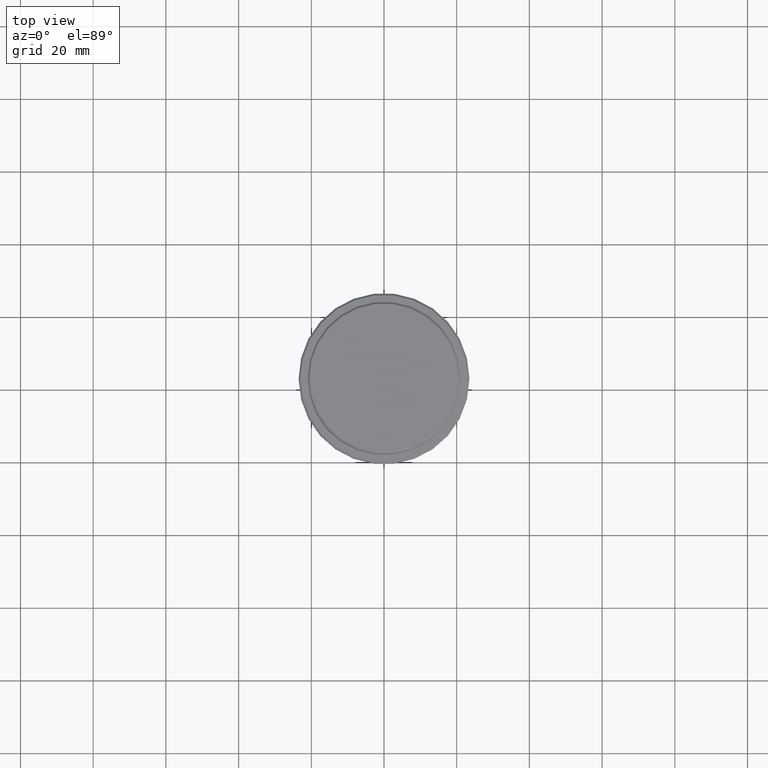
[diagram: clean part render]
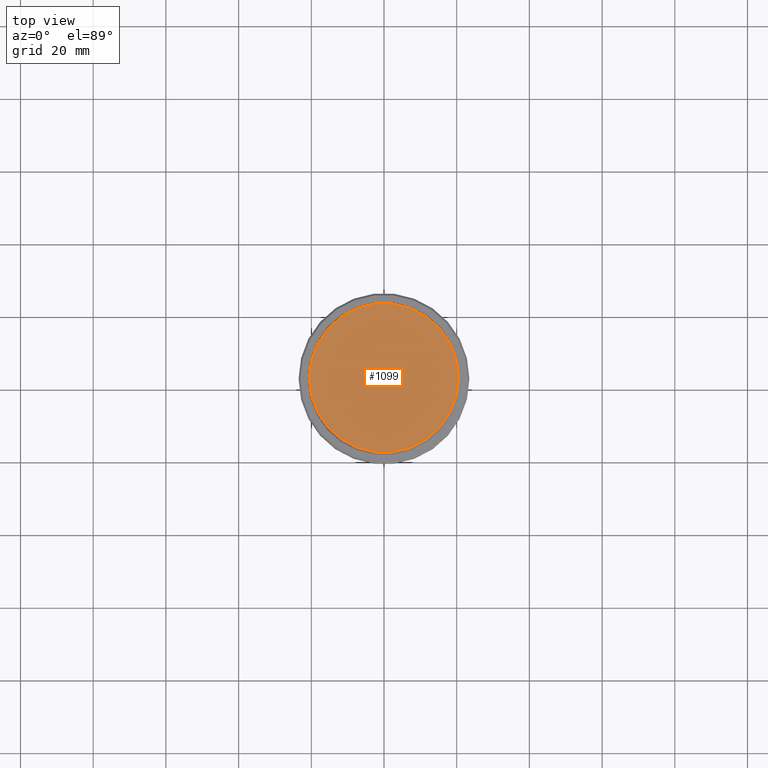
[diagram: same view with one face highlighted and labeled with its STEP entity id]
A machine part, top view. The second image highlights one B-rep face of the part: STEP entity #1099.
In plain terms, the highlighted planar face has unit normal (0, -0, 1).
Its self-contained STEP definition (entity closure, byte-faithful):
#92 = CIRCLE ( 'NONE', #1195, 20.49999999999998934 ) ;
#106 = DIRECTION ( 'NONE',  ( 1.000000000000000000, 0.000000000000000000, 0.000000000000000000 ) ) ;
#221 = EDGE_CURVE ( 'NONE', #497, #1151, #1123, .T. ) ;
#299 = DIRECTION ( 'NONE',  ( 1.000000000000000000, 0.000000000000000000, 0.000000000000000000 ) ) ;
#324 = PLANE ( 'NONE',  #490 ) ;
#374 = AXIS2_PLACEMENT_3D ( 'NONE', #854, #877, #106 ) ;
#384 = EDGE_CURVE ( 'NONE', #1151, #497, #92, .T. ) ;
#490 = AXIS2_PLACEMENT_3D ( 'NONE', #948, #846, #299 ) ;
#497 = VERTEX_POINT ( 'NONE', #925 ) ;
#645 = FACE_OUTER_BOUND ( 'NONE', #726, .T. ) ;
#726 = EDGE_LOOP ( 'NONE', ( #1027, #1322 ) ) ;
#774 = DIRECTION ( 'NONE',  ( 1.000000000000000000, 0.000000000000000000, 0.000000000000000000 ) ) ;
#846 = DIRECTION ( 'NONE',  ( 0.000000000000000000, -0.000000000000000000, 1.000000000000000000 ) ) ;
#854 = CARTESIAN_POINT ( 'NONE',  ( 0.000000000000000000, 0.000000000000000000, 0.000000000000000000 ) ) ;
#877 = DIRECTION ( 'NONE',  ( -0.000000000000000000, -0.000000000000000000, 1.000000000000000000 ) ) ;
#908 = DIRECTION ( 'NONE',  ( -0.000000000000000000, -0.000000000000000000, 1.000000000000000000 ) ) ;
#925 = CARTESIAN_POINT ( 'NONE',  ( 20.49999999999998934, 2.541142108230757480E-15, 0.000000000000000000 ) ) ;
#948 = CARTESIAN_POINT ( 'NONE',  ( 0.000000000000000000, 0.000000000000000000, 0.000000000000000000 ) ) ;
#1027 = ORIENTED_EDGE ( 'NONE', *, *, #384, .T. ) ;
#1099 = ADVANCED_FACE ( 'NONE', ( #645 ), #324, .T. ) ;
#1113 = CARTESIAN_POINT ( 'NONE',  ( 0.000000000000000000, 0.000000000000000000, 0.000000000000000000 ) ) ;
#1123 = CIRCLE ( 'NONE', #374, 20.49999999999998934 ) ;
#1151 = VERTEX_POINT ( 'NONE', #1287 ) ;
#1195 = AXIS2_PLACEMENT_3D ( 'NONE', #1113, #908, #774 ) ;
#1287 = CARTESIAN_POINT ( 'NONE',  ( -20.49999999999998934, 0.000000000000000000, 0.000000000000000000 ) ) ;
#1322 = ORIENTED_EDGE ( 'NONE', *, *, #221, .T. ) ;